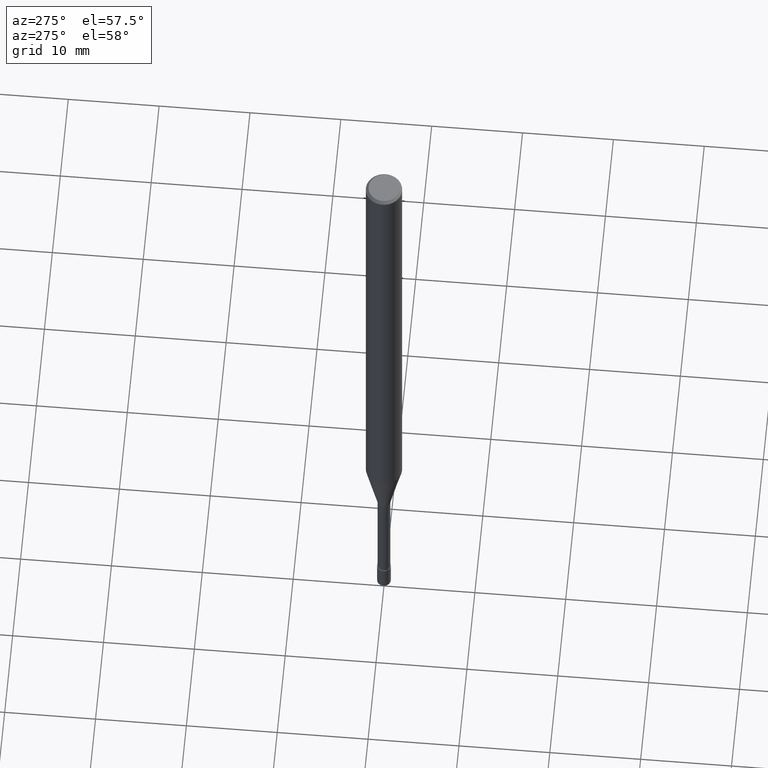
[diagram: clean part render]
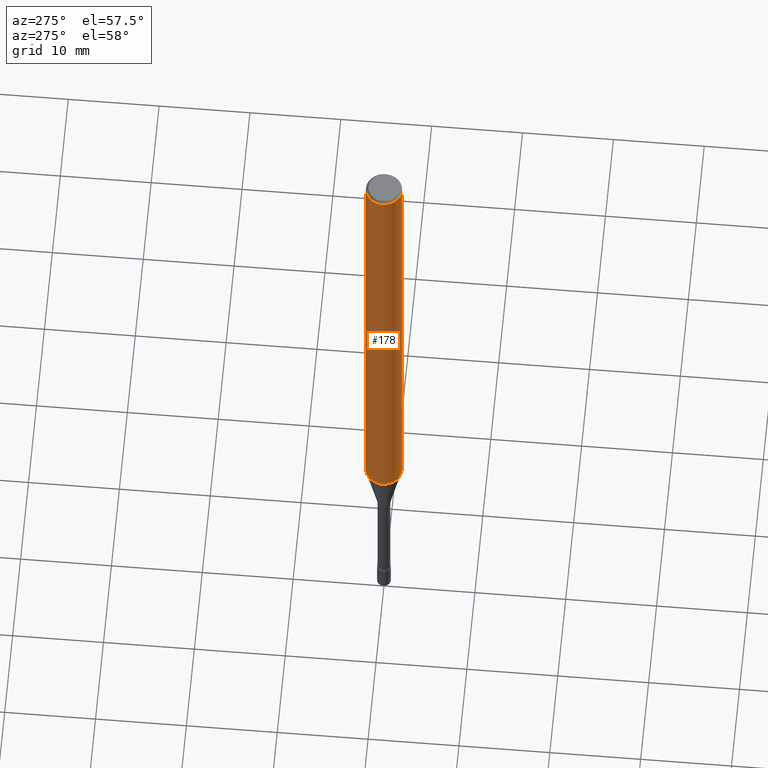
[diagram: same view with one face highlighted and labeled with its STEP entity id]
A machine part, auxiliary view. The second image highlights one B-rep face of the part: STEP entity #178.
In plain terms, the highlighted cylindrical surface (edge-blend (fillet) strip) has radius 2 mm, axis along (-0, -0, 1).
Its self-contained STEP definition (entity closure, byte-faithful):
#100=VERTEX_POINT('',#241);
#134=VERTEX_POINT('',#279);
#146=VERTEX_POINT('',#292);
#154=EDGE_CURVE('',#100,#146,#301,.T.);
#158=EDGE_CURVE('',#186,#134,#306,.T.);
#172=EDGE_CURVE('',#186,#100,#320,.T.);
#178=ADVANCED_FACE('',(#326),#327,.T.);
#182=EDGE_CURVE('',#146,#134,#332,.T.);
#186=VERTEX_POINT('',#336);
#241=CARTESIAN_POINT('',(2.44921270764475E-016,-2.0,-0.299999999999997));
#279=CARTESIAN_POINT('',(0.0,2.0,-57.312));
#292=CARTESIAN_POINT('',(0.0,2.0,-0.299999999999997));
#301=CIRCLE('',#461,2.0);
#306=CIRCLE('',#467,2.0);
#320=LINE('',#487,#488);
#326=FACE_OUTER_BOUND('',#495,.T.);
#327=CYLINDRICAL_SURFACE('',#496,2.0);
#332=LINE('',#502,#503);
#336=CARTESIAN_POINT('',(2.44921270764475E-016,-2.0,-57.312));
#461=AXIS2_PLACEMENT_3D('',#643,#644,#645);
#467=AXIS2_PLACEMENT_3D('',#654,#655,#656);
#487=CARTESIAN_POINT('',(2.44921270764475E-016,-2.0,-28.806));
#488=VECTOR('',#662,1.0);
#495=EDGE_LOOP('',(#667,#668,#669,#670));
#496=AXIS2_PLACEMENT_3D('',#671,#672,#673);
#502=CARTESIAN_POINT('',(-2.44921270764475E-016,2.0,-28.806));
#503=VECTOR('',#682,1.0);
#643=CARTESIAN_POINT('',(0.0,0.0,-0.299999999999997));
#644=DIRECTION('',(0.0,0.0,-1.0));
#645=DIRECTION('',(0.0,1.0,0.0));
#654=CARTESIAN_POINT('',(0.0,0.0,-57.312));
#655=DIRECTION('',(0.0,0.0,-1.0));
#656=DIRECTION('',(0.0,1.0,0.0));
#662=DIRECTION('',(-0.0,-0.0,1.0));
#667=ORIENTED_EDGE('',*,*,#182,.T.);
#668=ORIENTED_EDGE('',*,*,#158,.F.);
#669=ORIENTED_EDGE('',*,*,#172,.T.);
#670=ORIENTED_EDGE('',*,*,#154,.T.);
#671=CARTESIAN_POINT('',(0.0,0.0,-28.806));
#672=DIRECTION('',(-0.0,-0.0,1.0));
#673=DIRECTION('',(0.0,1.0,0.0));
#682=DIRECTION('',(0.0,0.0,-1.0));